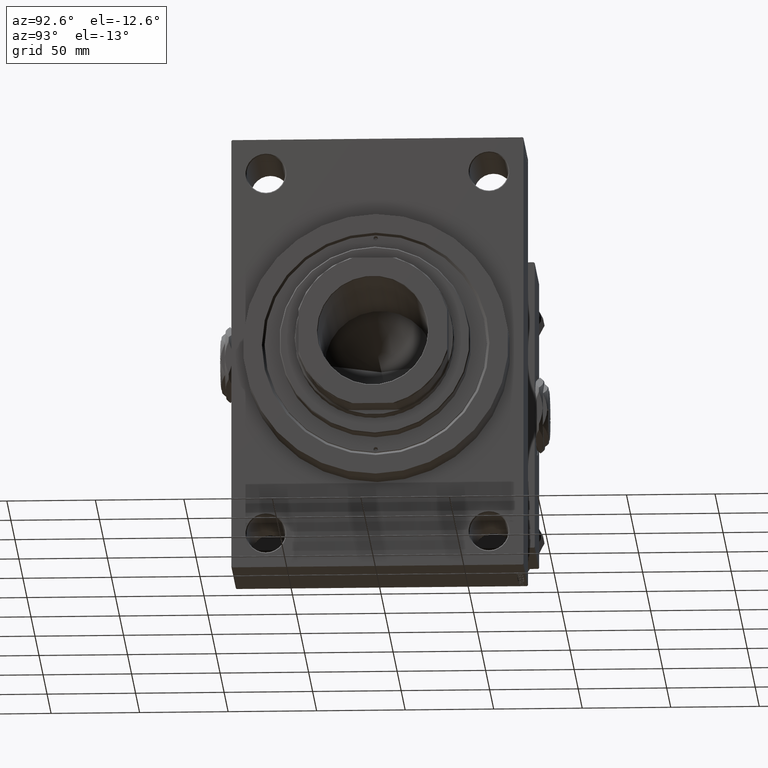
[diagram: clean part render]
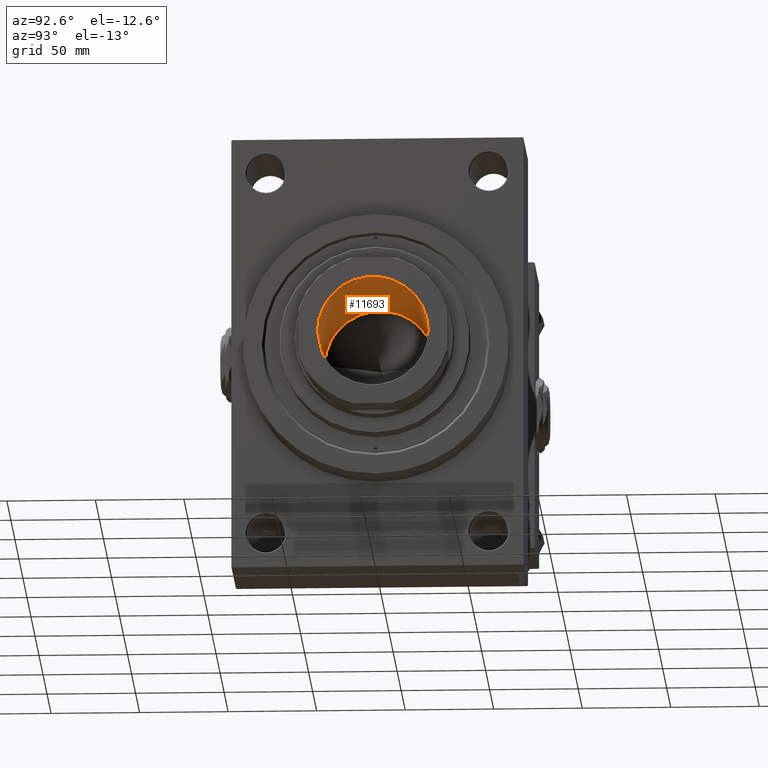
[diagram: same view with one face highlighted and labeled with its STEP entity id]
A machine part, auxiliary view. The second image highlights one B-rep face of the part: STEP entity #11693.
In plain terms, the highlighted cylindrical surface (partial cylindrical patch) has radius 31.25 mm, axis along (1, 0, 0).
Its self-contained STEP definition (entity closure, byte-faithful):
#1499 = DIRECTION ( 'NONE',  ( -0.000000000000000000, -0.000000000000000000, 1.000000000000000000 ) ) ;
#2475 = EDGE_CURVE ( 'NONE', #23641, #48215, #17695, .T. ) ;
#2619 = DIRECTION ( 'NONE',  ( -0.000000000000000000, -0.000000000000000000, 1.000000000000000000 ) ) ;
#6390 = VECTOR ( 'NONE', #1499, 1000.000000000000000 ) ;
#8671 = CARTESIAN_POINT ( 'NONE',  ( 0.000000000000000000, 0.000000000000000000, 196.6999999999999602 ) ) ;
#9061 = LINE ( 'NONE', #24927, #6390 ) ;
#9671 = CARTESIAN_POINT ( 'NONE',  ( 0.000000000000000000, 0.000000000000000000, 196.9999999999999716 ) ) ;
#11347 = ORIENTED_EDGE ( 'NONE', *, *, #48115, .T. ) ;
#11442 = CARTESIAN_POINT ( 'NONE',  ( 31.24999999999999289, 0.000000000000000000, 196.6999999999999602 ) ) ;
#11693 = ADVANCED_FACE ( 'NONE', ( #33595 ), #18220, .F. ) ;
#13216 = CARTESIAN_POINT ( 'NONE',  ( 0.000000000000000000, 0.000000000000000000, 106.9999999999999858 ) ) ;
#14285 = ORIENTED_EDGE ( 'NONE', *, *, #46954, .F. ) ;
#14601 = VERTEX_POINT ( 'NONE', #47858 ) ;
#14658 = EDGE_LOOP ( 'NONE', ( #20926, #16902, #11347, #14285 ) ) ;
#15278 = CIRCLE ( 'NONE', #49112, 31.24999999999999289 ) ;
#16902 = ORIENTED_EDGE ( 'NONE', *, *, #2475, .T. ) ;
#17695 = LINE ( 'NONE', #36595, #30865 ) ;
#18220 = CYLINDRICAL_SURFACE ( 'NONE', #45002, 31.24999999999999289 ) ;
#20926 = ORIENTED_EDGE ( 'NONE', *, *, #43807, .F. ) ;
#21254 = DIRECTION ( 'NONE',  ( 1.000000000000000000, 0.000000000000000000, 0.000000000000000000 ) ) ;
#23641 = VERTEX_POINT ( 'NONE', #28069 ) ;
#24927 = CARTESIAN_POINT ( 'NONE',  ( 31.24999999999999289, 0.000000000000000000, 196.9999999999999716 ) ) ;
#28069 = CARTESIAN_POINT ( 'NONE',  ( -31.24999999999998579, 3.827021247335477324E-15, 106.9999999999999858 ) ) ;
#29336 = DIRECTION ( 'NONE',  ( -0.000000000000000000, -0.000000000000000000, 1.000000000000000000 ) ) ;
#30439 = AXIS2_PLACEMENT_3D ( 'NONE', #13216, #29336, #40423 ) ;
#30865 = VECTOR ( 'NONE', #33071, 1000.000000000000000 ) ;
#33071 = DIRECTION ( 'NONE',  ( -0.000000000000000000, -0.000000000000000000, 1.000000000000000000 ) ) ;
#33595 = FACE_OUTER_BOUND ( 'NONE', #14658, .T. ) ;
#36595 = CARTESIAN_POINT ( 'NONE',  ( -31.24999999999999289, 3.827021247335478113E-15, 196.9999999999999716 ) ) ;
#40423 = DIRECTION ( 'NONE',  ( 1.000000000000000000, 0.000000000000000000, 0.000000000000000000 ) ) ;
#43301 = CIRCLE ( 'NONE', #30439, 31.24999999999998579 ) ;
#43441 = DIRECTION ( 'NONE',  ( 0.000000000000000000, 0.000000000000000000, 1.000000000000000000 ) ) ;
#43807 = EDGE_CURVE ( 'NONE', #23641, #14601, #43301, .T. ) ;
#44357 = DIRECTION ( 'NONE',  ( 1.000000000000000000, 0.000000000000000000, 0.000000000000000000 ) ) ;
#44743 = VERTEX_POINT ( 'NONE', #11442 ) ;
#45002 = AXIS2_PLACEMENT_3D ( 'NONE', #9671, #2619, #21254 ) ;
#46114 = CARTESIAN_POINT ( 'NONE',  ( -31.24999999999999289, 3.827021247335478113E-15, 196.6999999999999602 ) ) ;
#46954 = EDGE_CURVE ( 'NONE', #14601, #44743, #9061, .T. ) ;
#47858 = CARTESIAN_POINT ( 'NONE',  ( 31.24999999999998579, 0.000000000000000000, 106.9999999999999858 ) ) ;
#48115 = EDGE_CURVE ( 'NONE', #48215, #44743, #15278, .T. ) ;
#48215 = VERTEX_POINT ( 'NONE', #46114 ) ;
#49112 = AXIS2_PLACEMENT_3D ( 'NONE', #8671, #43441, #44357 ) ;